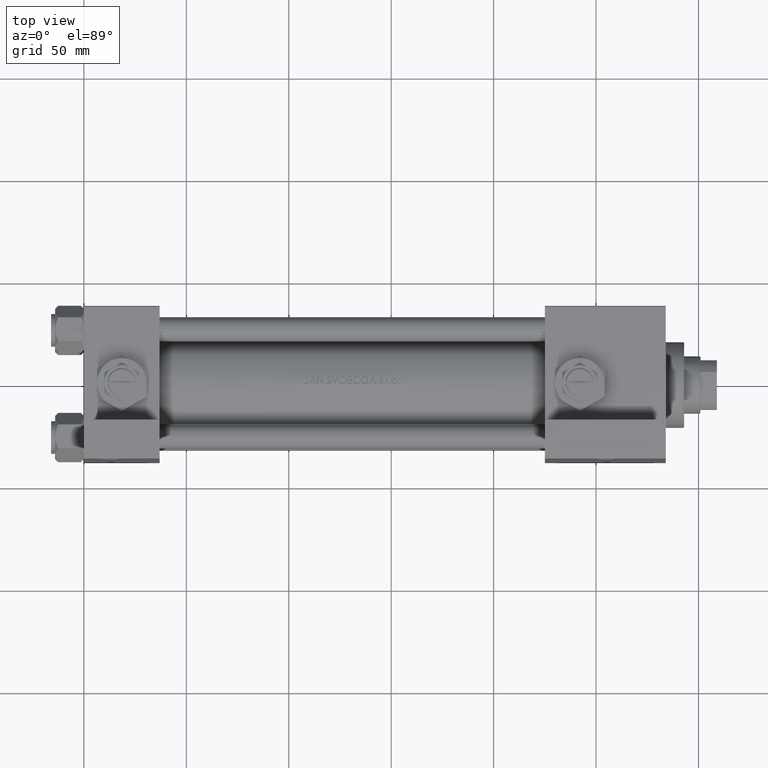
[diagram: clean part render]
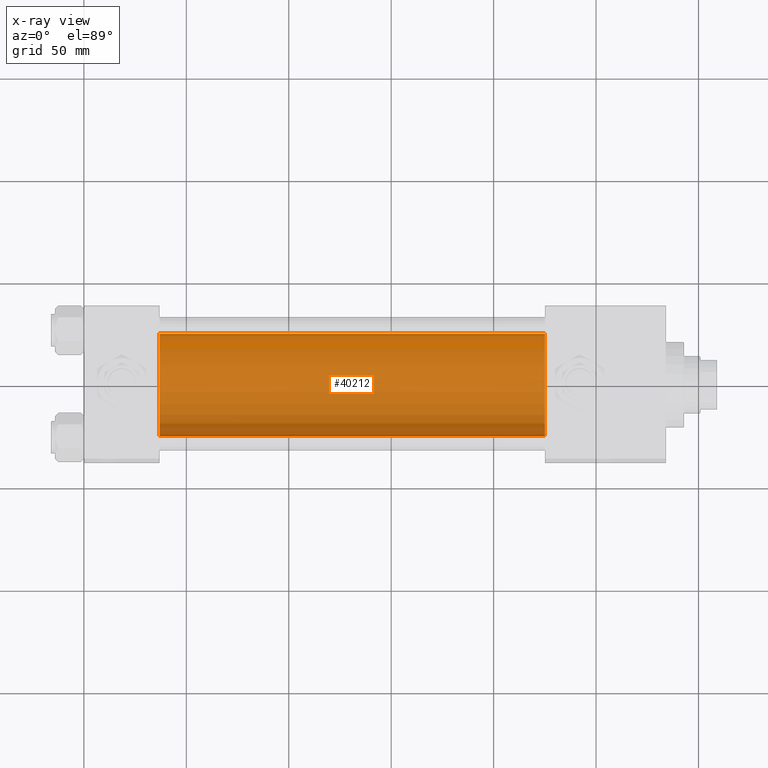
[diagram: x-ray — body ghosted, one internal face saturated and labeled with its STEP entity id]
A machine part, top view, then the same camera in x-ray: the body is ghosted and one INTERNAL B-rep face — a face not visible from any outside direction — is saturated and labeled: STEP entity #40212.
In plain terms, the highlighted cylindrical surface (partial cylindrical patch) has radius 25 mm, axis along (-1, -0, 0).
Its self-contained STEP definition (entity closure, byte-faithful):
#1858 = VERTEX_POINT ( 'NONE', #2141 ) ;
#2141 = CARTESIAN_POINT ( 'NONE',  ( 225.0000000000000000, 3.061616997868383043E-15, -25.50000000000000355 ) ) ;
#7557 = DIRECTION ( 'NONE',  ( -1.000000000000000000, -0.000000000000000000, -0.000000000000000000 ) ) ;
#10896 = DIRECTION ( 'NONE',  ( -1.000000000000000000, -0.000000000000000000, -0.000000000000000000 ) ) ;
#11010 = VERTEX_POINT ( 'NONE', #20704 ) ;
#12043 = VERTEX_POINT ( 'NONE', #14351 ) ;
#12228 = ORIENTED_EDGE ( 'NONE', *, *, #47170, .F. ) ;
#12651 = AXIS2_PLACEMENT_3D ( 'NONE', #17456, #40520, #13441 ) ;
#13276 = EDGE_CURVE ( 'NONE', #1858, #11010, #45883, .T. ) ;
#13441 = DIRECTION ( 'NONE',  ( 0.000000000000000000, 0.000000000000000000, -1.000000000000000000 ) ) ;
#14351 = CARTESIAN_POINT ( 'NONE',  ( 37.00000000000000000, 3.061616997868383043E-15, -25.50000000000000355 ) ) ;
#14929 = ORIENTED_EDGE ( 'NONE', *, *, #18953, .T. ) ;
#15964 = EDGE_LOOP ( 'NONE', ( #26949, #45423, #14929, #12228 ) ) ;
#17450 = CIRCLE ( 'NONE', #12651, 25.00000000000000000 ) ;
#17456 = CARTESIAN_POINT ( 'NONE',  ( 37.00000000000000000, 0.000000000000000000, -0.5000000000000004441 ) ) ;
#17762 = DIRECTION ( 'NONE',  ( 1.000000000000000000, 0.000000000000000000, 0.000000000000000000 ) ) ;
#18027 = VECTOR ( 'NONE', #7557, 1000.000000000000000 ) ;
#18119 = CARTESIAN_POINT ( 'NONE',  ( 225.0000000000000000, 3.061616997868383043E-15, -25.50000000000000355 ) ) ;
#18953 = EDGE_CURVE ( 'NONE', #11010, #45770, #24751, .T. ) ;
#20704 = CARTESIAN_POINT ( 'NONE',  ( 225.0000000000000000, 0.000000000000000000, 24.50000000000000000 ) ) ;
#21914 = DIRECTION ( 'NONE',  ( 0.000000000000000000, 0.000000000000000000, 1.000000000000000000 ) ) ;
#24751 = LINE ( 'NONE', #32542, #46071 ) ;
#26538 = CARTESIAN_POINT ( 'NONE',  ( 37.00000000000000000, 0.000000000000000000, 24.50000000000000000 ) ) ;
#26949 = ORIENTED_EDGE ( 'NONE', *, *, #41275, .F. ) ;
#30433 = CYLINDRICAL_SURFACE ( 'NONE', #48408, 25.00000000000000000 ) ;
#32289 = DIRECTION ( 'NONE',  ( -1.000000000000000000, -0.000000000000000000, -0.000000000000000000 ) ) ;
#32542 = CARTESIAN_POINT ( 'NONE',  ( 225.0000000000000000, 0.000000000000000000, 24.50000000000000000 ) ) ;
#35472 = AXIS2_PLACEMENT_3D ( 'NONE', #40586, #17762, #48345 ) ;
#40212 = ADVANCED_FACE ( 'NONE', ( #45240 ), #30433, .F. ) ;
#40520 = DIRECTION ( 'NONE',  ( 1.000000000000000000, 0.000000000000000000, 0.000000000000000000 ) ) ;
#40586 = CARTESIAN_POINT ( 'NONE',  ( 225.0000000000000000, 0.000000000000000000, -0.5000000000000004441 ) ) ;
#41275 = EDGE_CURVE ( 'NONE', #1858, #12043, #41923, .T. ) ;
#41923 = LINE ( 'NONE', #18119, #18027 ) ;
#45240 = FACE_OUTER_BOUND ( 'NONE', #15964, .T. ) ;
#45423 = ORIENTED_EDGE ( 'NONE', *, *, #13276, .T. ) ;
#45724 = CARTESIAN_POINT ( 'NONE',  ( 225.0000000000000000, 0.000000000000000000, -0.5000000000000004441 ) ) ;
#45770 = VERTEX_POINT ( 'NONE', #26538 ) ;
#45883 = CIRCLE ( 'NONE', #35472, 25.00000000000000000 ) ;
#46071 = VECTOR ( 'NONE', #32289, 1000.000000000000000 ) ;
#47170 = EDGE_CURVE ( 'NONE', #12043, #45770, #17450, .T. ) ;
#48345 = DIRECTION ( 'NONE',  ( 0.000000000000000000, 0.000000000000000000, -1.000000000000000000 ) ) ;
#48408 = AXIS2_PLACEMENT_3D ( 'NONE', #45724, #10896, #21914 ) ;